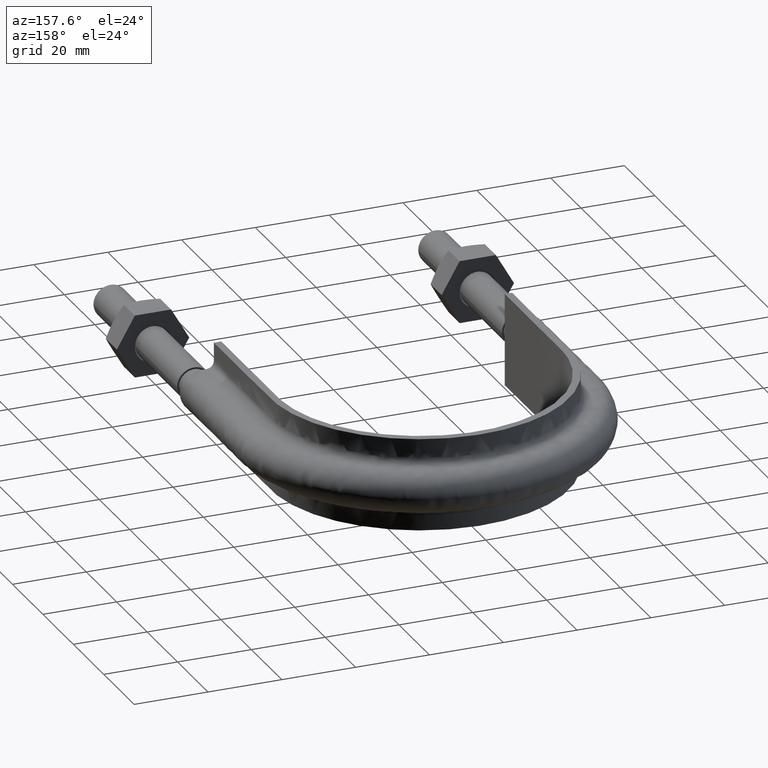
[diagram: clean part render]
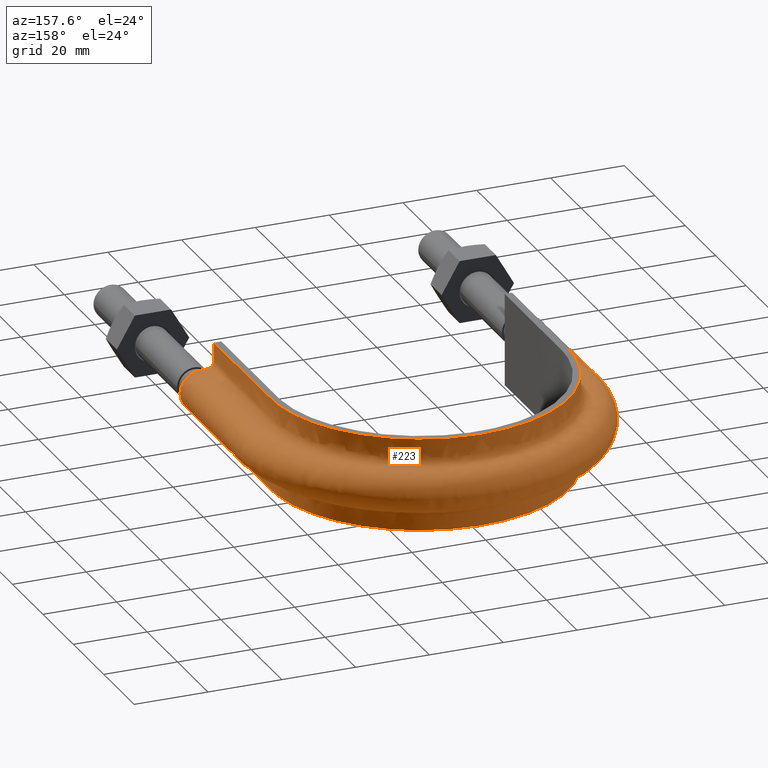
[diagram: same view with one face highlighted and labeled with its STEP entity id]
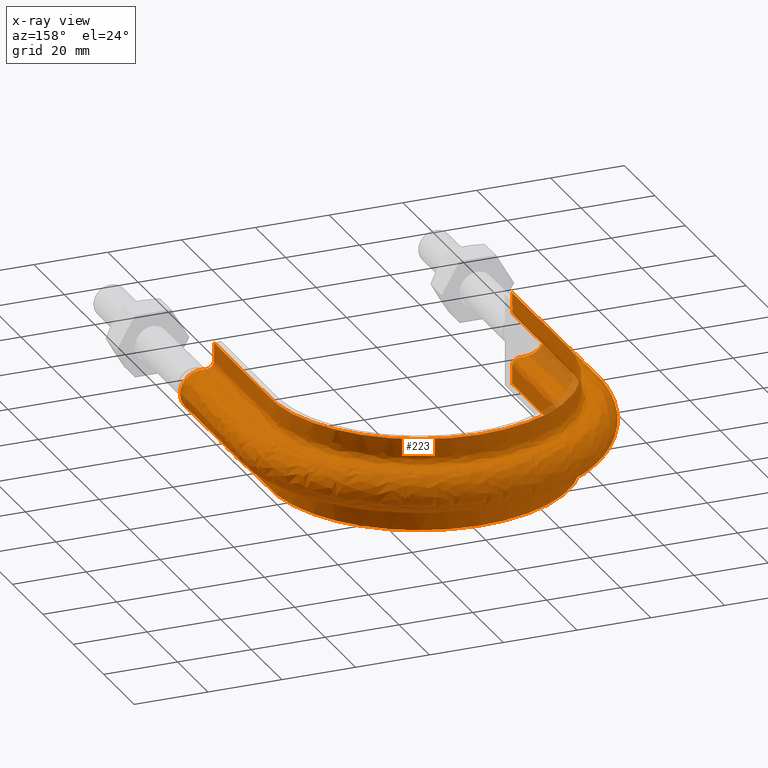
[diagram: x-ray of the same camera — body ghosted, the highlighted face saturated]
A machine part, auxiliary view. The second image highlights one B-rep face of the part: STEP entity #223.
The next image is the same camera in x-ray: the body ghosted, the highlighted face saturated — about 3% of this face is hidden behind the body in this view.
In plain terms, the highlighted face is a freeform B-spline surface patch.
Its self-contained STEP definition (entity closure, byte-faithful):
#223 = ADVANCED_FACE( '', ( #303 ), #304, .F. );
#303 = FACE_OUTER_BOUND( '', #471, .T. );
#304 = B_SPLINE_SURFACE_WITH_KNOTS( '', 3, 3, ( ( #472, #473, #474, #475, #476, #477, #478, #479, #480, #481, #482, #483, #484, #485, #486, #487, #488 ), ( #489, #490, #491, #492, #493, #494, #495, #496, #497, #498, #499, #500, #501, #502, #503, #504, #505 ), ( #506, #507, #508, #509, #510, #511, #512, #513, #514, #515, #516, #517, #518, #519, #520, #521, #522 ), ( #523, #524, #525, #526, #527, #528, #529, #530, #531, #532, #533, #534, #535, #536, #537, #538, #539 ), ( #540, #541, #542, #543, #544, #545, #546, #547, #548, #549, #550, #551, #552, #553, #554, #555, #556 ), ( #557, #558, #559, #560, #561, #562, #563, #564, #565, #566, #567, #568, #569, #570, #571, #572, #573 ), ( #574, #575, #576, #577, #578, #579, #580, #581, #582, #583, #584, #585, #586, #587, #588, #589, #590 ), ( #591, #592, #593, #594, #595, #596, #597, #598, #599, #600, #601, #602, #603, #604, #605, #606, #607 ), ( #608, #609, #610, #611, #612, #613, #614, #615, #616, #617, #618, #619, #620, #621, #622, #623, #624 ), ( #625, #626, #627, #628, #629, #630, #631, #632, #633, #634, #635, #636, #637, #638, #639, #640, #641 ), ( #642, #643, #644, #645, #646, #647, #648, #649, #650, #651, #652, #653, #654, #655, #656, #657, #658 ), ( #659, #660, #661, #662, #663, #664, #665, #666, #667, #668, #669, #670, #671, #672, #673, #674, #675 ), ( #676, #677, #678, #679, #680, #681, #682, #683, #684, #685, #686, #687, #688, #689, #690, #691, #692 ), ( #693, #694, #695, #696, #697, #698, #699, #700, #701, #702, #703, #704, #705, #706, #707, #708, #709 ), ( #710, #711, #712, #713, #714, #715, #716, #717, #718, #719, #720, #721, #722, #723, #724, #725, #726 ), ( #727, #728, #729, #730, #731, #732, #733, #734, #735, #736, #737, #738, #739, #740, #741, #742, #743 ), ( #744, #745, #746, #747, #748, #749, #750, #751, #752, #753, #754, #755, #756, #757, #758, #759, #760 ), ( #761, #762, #763, #764, #765, #766, #767, #768, #769, #770, #771, #772, #773, #774, #775, #776, #777 ), ( #778, #779, #780, #781, #782, #783, #784, #785, #786, #787, #788, #789, #790, #791, #792, #793, #794 ), ( #795, #796, #797, #798, #799, #800, #801, #802, #803, #804, #805, #806, #807, #808, #809, #810, #811 ), ( #812, #813, #814, #815, #816, #817, #818, #819, #820, #821, #822, #823, #824, #825, #826, #827, #828 ), ( #829, #830, #831, #832, #833, #834, #835, #836, #837, #838, #839, #840, #841, #842, #843, #844, #845 ), ( #846, #847, #848, #849, #850, #851, #852, #853, #854, #855, #856, #857, #858, #859, #860, #861, #862 ), ( #863, #864, #865, #866, #867, #868, #869, #870, #871, #872, #873, #874, #875, #876, #877, #878, #879 ), ( #880, #881, #882, #883, #884, #885, #886, #887, #888, #889, #890, #891, #892, #893, #894, #895, #896 ), ( #897, #898, #899, #900, #901, #902, #903, #904, #905, #906, #907, #908, #909, #910, #911, #912, #913 ), ( #914, #915, #916, #917, #918, #919, #920, #921, #922, #923, #924, #925, #926, #927, #928, #929, #930 ), ( #931, #932, #933, #934, #935, #936, #937, #938, #939, #940, #941, #942, #943, #944, #945, #946, #947 ), ( #948, #949, #950, #951, #952, #953, #954, #955, #956, #957, #958, #959, #960, #961, #962, #963, #964 ), ( #965, #966, #967, #968, #969, #970, #971, #972, #973, #974, #975, #976, #977, #978, #979, #980, #981 ), ( #982, #983, #984, #985, #986, #987, #988, #989, #990, #991, #992, #993, #994, #995, #996, #997, #998 ) ), .UNSPECIFIED., .F., .F., .F., ( 4, 3, 1, 1, 1, 3, 3, 1, 1, 1, 3, 3, 1, 1, 1, 3, 4 ), ( 4, 3, 1, 1, 1, 1, 1, 1, 1, 3, 4 ), ( 0.105263157894737, 0.157894736842105, 0.210526315789474, 0.263157894736842, 0.315789473684211, 0.368421052631579, 0.421052631578947, 0.473684210526316, 0.526315789473684, 0.578947368421053, 0.631578947368421, 0.684210526315789, 0.736842105263158, 0.789473684210526, 0.842105263157895, 0.894736842105263, 0.947368421052632 ), ( 0.000000000000000, 1.00000000000000, 1.50000000000000, 2.00000000000000, 3.00000000000000, 4.00000000000000, 5.00000000000000, 6.00000000000000, 6.50000000000000, 7.00000000000000, 8.00000000000000 ), .UNSPECIFIED. );
#471 = EDGE_LOOP( '', ( #1348, #1349, #1350, #1351 ) );
#472 = CARTESIAN_POINT( '', ( -40.4000000000000, 56.5000000000000, 12.5000000000000 ) );
#473 = CARTESIAN_POINT( '', ( -40.4000000000000, 69.8666666666667, 12.5000000000000 ) );
#474 = CARTESIAN_POINT( '', ( -40.4000000000000, 83.2333333333333, 12.5000000000000 ) );
#475 = CARTESIAN_POINT( '', ( -40.4000000000000, 96.6000000000000, 12.5000000000000 ) );
#476 = CARTESIAN_POINT( '', ( -40.4000000000000, 100.116528833197, 12.5000000000000 ) );
#477 = CARTESIAN_POINT( '', ( -39.4544182095027, 107.175179019489, 12.5000000000000 ) );
#478 = CARTESIAN_POINT( '', ( -34.0439198137652, 120.322280291266, 12.5000000000000 ) );
#479 = CARTESIAN_POINT( '', ( -21.1440253219688, 133.223582281160, 12.5000000000000 ) );
#480 = CARTESIAN_POINT( '', ( 3.17534878498284E-014, 138.888208859420, 12.5000000000000 ) );
#481 = CARTESIAN_POINT( '', ( 21.1440253219689, 133.223582281160, 12.5000000000000 ) );
#482 = CARTESIAN_POINT( '', ( 34.0439198137653, 120.322280291266, 12.5000000000000 ) );
#483 = CARTESIAN_POINT( '', ( 39.4544182095027, 107.175179019489, 12.5000000000000 ) );
#484 = CARTESIAN_POINT( '', ( 40.4000000000000, 100.116528833197, 12.5000000000000 ) );
#485 = CARTESIAN_POINT( '', ( 40.4000000000000, 96.6000000000000, 12.5000000000000 ) );
#486 = CARTESIAN_POINT( '', ( 40.4000000000000, 83.2333333333333, 12.5000000000000 ) );
#487 = CARTESIAN_POINT( '', ( 40.4000000000000, 69.8666666666667, 12.5000000000000 ) );
#488 = CARTESIAN_POINT( '', ( 40.4000000000000, 56.5000000000000, 12.5000000000000 ) );
#489 = CARTESIAN_POINT( '', ( -40.4000000000000, 56.5000000000000, 10.8666666666667 ) );
#490 = CARTESIAN_POINT( '', ( -40.4000000000000, 69.8666666666667, 10.8666666666667 ) );
#491 = CARTESIAN_POINT( '', ( -40.4000000000000, 83.2333333333333, 10.8666666666667 ) );
#492 = CARTESIAN_POINT( '', ( -40.4000000000000, 96.6000000000000, 10.8666666666667 ) );
#493 = CARTESIAN_POINT( '', ( -40.4000000000000, 100.116528833197, 10.8666666666667 ) );
#494 = CARTESIAN_POINT( '', ( -39.4544182095027, 107.175179019489, 10.8666666666666 ) );
#495 = CARTESIAN_POINT( '', ( -34.0439198137652, 120.322280291266, 10.8666666666667 ) );
#496 = CARTESIAN_POINT( '', ( -21.1440253219688, 133.223582281160, 10.8666666666667 ) );
#497 = CARTESIAN_POINT( '', ( 3.17534878498284E-014, 138.888208859420, 10.8666666666667 ) );
#498 = CARTESIAN_POINT( '', ( 21.1440253219689, 133.223582281160, 10.8666666666667 ) );
#499 = CARTESIAN_POINT( '', ( 34.0439198137653, 120.322280291266, 10.8666666666667 ) );
#500 = CARTESIAN_POINT( '', ( 39.4544182095027, 107.175179019489, 10.8666666666666 ) );
#501 = CARTESIAN_POINT( '', ( 40.4000000000000, 100.116528833197, 10.8666666666667 ) );
#502 = CARTESIAN_POINT( '', ( 40.4000000000000, 96.6000000000000, 10.8666666666667 ) );
#503 = CARTESIAN_POINT( '', ( 40.4000000000000, 83.2333333333333, 10.8666666666667 ) );
#504 = CARTESIAN_POINT( '', ( 40.4000000000000, 69.8666666666667, 10.8666666666667 ) );
#505 = CARTESIAN_POINT( '', ( 40.4000000000000, 56.5000000000000, 10.8666666666667 ) );
#506 = CARTESIAN_POINT( '', ( -40.4000000000000, 56.5000000000000, 9.23333333333332 ) );
#507 = CARTESIAN_POINT( '', ( -40.4000000000000, 69.8666666666667, 9.23333333333332 ) );
#508 = CARTESIAN_POINT( '', ( -40.4000000000000, 83.2333333333333, 9.23333333333332 ) );
#509 = CARTESIAN_POINT( '', ( -40.4000000000000, 96.6000000000000, 9.23333333333332 ) );
#510 = CARTESIAN_POINT( '', ( -40.4000000000000, 100.116528833197, 9.23333333333332 ) );
#511 = CARTESIAN_POINT( '', ( -39.4544182095027, 107.175179019489, 9.23333333333331 ) );
#512 = CARTESIAN_POINT( '', ( -34.0439198137652, 120.322280291266, 9.23333333333333 ) );
#513 = CARTESIAN_POINT( '', ( -21.1440253219688, 133.223582281160, 9.23333333333332 ) );
#514 = CARTESIAN_POINT( '', ( 3.17534878498284E-014, 138.888208859420, 9.23333333333332 ) );
#515 = CARTESIAN_POINT( '', ( 21.1440253219689, 133.223582281160, 9.23333333333332 ) );
#516 = CARTESIAN_POINT( '', ( 34.0439198137653, 120.322280291266, 9.23333333333332 ) );
#517 = CARTESIAN_POINT( '', ( 39.4544182095027, 107.175179019489, 9.23333333333331 ) );
#518 = CARTESIAN_POINT( '', ( 40.4000000000000, 100.116528833197, 9.23333333333332 ) );
#519 = CARTESIAN_POINT( '', ( 40.4000000000000, 96.6000000000000, 9.23333333333332 ) );
#520 = CARTESIAN_POINT( '', ( 40.4000000000000, 83.2333333333333, 9.23333333333332 ) );
#521 = CARTESIAN_POINT( '', ( 40.4000000000000, 69.8666666666667, 9.23333333333332 ) );
#522 = CARTESIAN_POINT( '', ( 40.4000000000000, 56.5000000000000, 9.23333333333332 ) );
#523 = CARTESIAN_POINT( '', ( -40.4000000000000, 56.5000000000000, 7.59999999999998 ) );
#524 = CARTESIAN_POINT( '', ( -40.4000000000000, 69.8666666666667, 7.59999999999998 ) );
#525 = CARTESIAN_POINT( '', ( -40.4000000000000, 83.2333333333333, 7.59999999999998 ) );
#526 = CARTESIAN_POINT( '', ( -40.4000000000000, 96.6000000000000, 7.59999999999998 ) );
#527 = CARTESIAN_POINT( '', ( -40.4000000000000, 100.116528833197, 7.59999999999998 ) );
#528 = CARTESIAN_POINT( '', ( -39.4544182095027, 107.175179019489, 7.59999999999997 ) );
#529 = CARTESIAN_POINT( '', ( -34.0439198137652, 120.322280291266, 7.59999999999999 ) );
#530 = CARTESIAN_POINT( '', ( -21.1440253219688, 133.223582281160, 7.59999999999998 ) );
#531 = CARTESIAN_POINT( '', ( 3.34882113258052E-014, 138.888208859420, 7.59999999999998 ) );
#532 = CARTESIAN_POINT( '', ( 21.1440253219689, 133.223582281160, 7.59999999999998 ) );
#533 = CARTESIAN_POINT( '', ( 34.0439198137653, 120.322280291266, 7.59999999999999 ) );
#534 = CARTESIAN_POINT( '', ( 39.4544182095027, 107.175179019489, 7.59999999999997 ) );
#535 = CARTESIAN_POINT( '', ( 40.4000000000000, 100.116528833197, 7.59999999999998 ) );
#536 = CARTESIAN_POINT( '', ( 40.4000000000000, 96.6000000000000, 7.59999999999998 ) );
#537 = CARTESIAN_POINT( '', ( 40.4000000000000, 83.2333333333333, 7.59999999999998 ) );
#538 = CARTESIAN_POINT( '', ( 40.4000000000000, 69.8666666666667, 7.59999999999998 ) );
#539 = CARTESIAN_POINT( '', ( 40.4000000000000, 56.5000000000000, 7.59999999999998 ) );
#540 = CARTESIAN_POINT( '', ( -40.4000000000000, 56.5000000000000, 7.33823584172332 ) );
#541 = CARTESIAN_POINT( '', ( -40.4000000000000, 69.8666666666667, 7.33823584172332 ) );
#542 = CARTESIAN_POINT( '', ( -40.4000000000000, 83.2333333333333, 7.33823584172332 ) );
#543 = CARTESIAN_POINT( '', ( -40.4000000000000, 96.6000000000000, 7.33823584172332 ) );
#544 = CARTESIAN_POINT( '', ( -40.4000000000000, 100.116528833197, 7.33823584172332 ) );
#545 = CARTESIAN_POINT( '', ( -39.4544182095027, 107.175179019489, 7.33823584172331 ) );
#546 = CARTESIAN_POINT( '', ( -34.0439198137652, 120.322280291266, 7.33823584172332 ) );
#547 = CARTESIAN_POINT( '', ( -21.1440253219688, 133.223582281160, 7.33823584172331 ) );
#548 = CARTESIAN_POINT( '', ( 3.17534878498284E-014, 138.888208859420, 7.33823584172331 ) );
#549 = CARTESIAN_POINT( '', ( 21.1440253219689, 133.223582281160, 7.33823584172331 ) );
#550 = CARTESIAN_POINT( '', ( 34.0439198137653, 120.322280291266, 7.33823584172332 ) );
#551 = CARTESIAN_POINT( '', ( 39.4544182095027, 107.175179019489, 7.33823584172331 ) );
#552 = CARTESIAN_POINT( '', ( 40.4000000000000, 100.116528833197, 7.33823584172332 ) );
#553 = CARTESIAN_POINT( '', ( 40.4000000000000, 96.6000000000000, 7.33823584172332 ) );
#554 = CARTESIAN_POINT( '', ( 40.4000000000000, 83.2333333333333, 7.33823584172332 ) );
#555 = CARTESIAN_POINT( '', ( 40.4000000000000, 69.8666666666667, 7.33823584172332 ) );
#556 = CARTESIAN_POINT( '', ( 40.4000000000000, 56.5000000000000, 7.33823584172332 ) );
#557 = CARTESIAN_POINT( '', ( -40.5041362568359, 56.5000000000000, 6.81470752516999 ) );
#558 = CARTESIAN_POINT( '', ( -40.5041362568359, 69.8666666666667, 6.81470752516999 ) );
#559 = CARTESIAN_POINT( '', ( -40.5041362568359, 83.2333333333333, 6.81470752516999 ) );
#560 = CARTESIAN_POINT( '', ( -40.5041362568359, 96.6000000000000, 6.81470752516999 ) );
#561 = CARTESIAN_POINT( '', ( -40.5041362568359, 100.125829908504, 6.81470752516999 ) );
#562 = CARTESIAN_POINT( '', ( -39.5561585978603, 107.202341937292, 6.81470752516998 ) );
#563 = CARTESIAN_POINT( '', ( -34.1316485577521, 120.383483124071, 6.81470752516999 ) );
#564 = CARTESIAN_POINT( '', ( -21.1985343424224, 133.317964123169, 6.81470752516999 ) );
#565 = CARTESIAN_POINT( '', ( 3.26341994459140E-014, 138.997222323669, 6.81470752516999 ) );
#566 = CARTESIAN_POINT( '', ( 21.1985343424224, 133.317964123169, 6.81470752516999 ) );
#567 = CARTESIAN_POINT( '', ( 34.1316485577522, 120.383483124071, 6.81470752516999 ) );
#568 = CARTESIAN_POINT( '', ( 39.5561585978604, 107.202341937292, 6.81470752516998 ) );
#569 = CARTESIAN_POINT( '', ( 40.5041362568359, 100.125829908504, 6.81470752516999 ) );
#570 = CARTESIAN_POINT( '', ( 40.5041362568359, 96.6000000000000, 6.81470752516999 ) );
#571 = CARTESIAN_POINT( '', ( 40.5041362568359, 83.2333333333333, 6.81470752516999 ) );
#572 = CARTESIAN_POINT( '', ( 40.5041362568359, 69.8666666666667, 6.81470752516999 ) );
#573 = CARTESIAN_POINT( '', ( 40.5041362568359, 56.5000000000000, 6.81470752516999 ) );
#574 = CARTESIAN_POINT( '', ( -40.9489687109389, 56.5000000000000, 6.14896871093886 ) );
#575 = CARTESIAN_POINT( '', ( -40.9489687109389, 69.8666666666667, 6.14896871093886 ) );
#576 = CARTESIAN_POINT( '', ( -40.9489687109389, 83.2333333333333, 6.14896871093886 ) );
#577 = CARTESIAN_POINT( '', ( -40.9489687109389, 96.6000000000000, 6.14896871093886 ) );
#578 = CARTESIAN_POINT( '', ( -40.9489687109389, 100.165560740786, 6.14896871093886 ) );
#579 = CARTESIAN_POINT( '', ( -39.9907567676970, 107.318372105405, 6.14896871093885 ) );
#580 = CARTESIAN_POINT( '', ( -34.5063940466797, 120.644919506957, 6.14896871093886 ) );
#581 = CARTESIAN_POINT( '', ( -21.4313771781055, 133.721129242402, 6.14896871093885 ) );
#582 = CARTESIAN_POINT( '', ( 3.18238634770451E-014, 139.462888445207, 6.14896871093886 ) );
#583 = CARTESIAN_POINT( '', ( 21.4313771781055, 133.721129242402, 6.14896871093885 ) );
#584 = CARTESIAN_POINT( '', ( 34.5063940466797, 120.644919506957, 6.14896871093886 ) );
#585 = CARTESIAN_POINT( '', ( 39.9907567676970, 107.318372105405, 6.14896871093885 ) );
#586 = CARTESIAN_POINT( '', ( 40.9489687109389, 100.165560740786, 6.14896871093886 ) );
#587 = CARTESIAN_POINT( '', ( 40.9489687109389, 96.6000000000000, 6.14896871093886 ) );
#588 = CARTESIAN_POINT( '', ( 40.9489687109389, 83.2333333333333, 6.14896871093886 ) );
#589 = CARTESIAN_POINT( '', ( 40.9489687109389, 69.8666666666667, 6.14896871093886 ) );
#590 = CARTESIAN_POINT( '', ( 40.9489687109389, 56.5000000000000, 6.14896871093886 ) );
#591 = CARTESIAN_POINT( '', ( -41.6147075251700, 56.5000000000000, 5.70413625683589 ) );
#592 = CARTESIAN_POINT( '', ( -41.6147075251700, 69.8666666666667, 5.70413625683589 ) );
#593 = CARTESIAN_POINT( '', ( -41.6147075251700, 83.2333333333333, 5.70413625683589 ) );
#594 = CARTESIAN_POINT( '', ( -41.6147075251700, 96.6000000000000, 5.70413625683589 ) );
#595 = CARTESIAN_POINT( '', ( -41.6147075251700, 100.225022133333, 5.70413625683589 ) );
#596 = CARTESIAN_POINT( '', ( -40.6411788931184, 107.492023523646, 5.70413625683588 ) );
#597 = CARTESIAN_POINT( '', ( -35.0672403049415, 121.036186704155, 5.70413625683589 ) );
#598 = CARTESIAN_POINT( '', ( -21.7798511077842, 134.324508483151, 5.70413625683588 ) );
#599 = CARTESIAN_POINT( '', ( 3.10418468337414E-014, 140.159807046179, 5.70413625683589 ) );
#600 = CARTESIAN_POINT( '', ( 21.7798511077843, 134.324508483151, 5.70413625683588 ) );
#601 = CARTESIAN_POINT( '', ( 35.0672403049415, 121.036186704155, 5.70413625683589 ) );
#602 = CARTESIAN_POINT( '', ( 40.6411788931185, 107.492023523646, 5.70413625683588 ) );
#603 = CARTESIAN_POINT( '', ( 41.6147075251700, 100.225022133333, 5.70413625683589 ) );
#604 = CARTESIAN_POINT( '', ( 41.6147075251700, 96.6000000000000, 5.70413625683589 ) );
#605 = CARTESIAN_POINT( '', ( 41.6147075251700, 83.2333333333333, 5.70413625683589 ) );
#606 = CARTESIAN_POINT( '', ( 41.6147075251700, 69.8666666666667, 5.70413625683589 ) );
#607 = CARTESIAN_POINT( '', ( 41.6147075251700, 56.5000000000000, 5.70413625683589 ) );
#608 = CARTESIAN_POINT( '', ( -42.1382358417233, 56.5000000000000, 5.59999999999998 ) );
#609 = CARTESIAN_POINT( '', ( -42.1382358417233, 69.8666666666667, 5.59999999999998 ) );
#610 = CARTESIAN_POINT( '', ( -42.1382358417233, 83.2333333333333, 5.59999999999998 ) );
#611 = CARTESIAN_POINT( '', ( -42.1382358417233, 96.6000000000000, 5.59999999999998 ) );
#612 = CARTESIAN_POINT( '', ( -42.1382358417233, 100.271781796545, 5.59999999999998 ) );
#613 = CARTESIAN_POINT( '', ( -41.1526623654531, 107.628580733042, 5.59999999999997 ) );
#614 = CARTESIAN_POINT( '', ( -35.5082824841813, 121.343874122543, 5.59999999999998 ) );
#615 = CARTESIAN_POINT( '', ( -22.0538864589874, 134.798998044823, 5.59999999999998 ) );
#616 = CARTESIAN_POINT( '', ( 3.11089611025677E-014, 140.707854740173, 5.59999999999998 ) );
#617 = CARTESIAN_POINT( '', ( 22.0538864589875, 134.798998044823, 5.59999999999997 ) );
#618 = CARTESIAN_POINT( '', ( 35.5082824841814, 121.343874122543, 5.59999999999998 ) );
#619 = CARTESIAN_POINT( '', ( 41.1526623654532, 107.628580733042, 5.59999999999997 ) );
#620 = CARTESIAN_POINT( '', ( 42.1382358417234, 100.271781796545, 5.59999999999998 ) );
#621 = CARTESIAN_POINT( '', ( 42.1382358417234, 96.6000000000000, 5.59999999999998 ) );
#622 = CARTESIAN_POINT( '', ( 42.1382358417233, 83.2333333333333, 5.59999999999998 ) );
#623 = CARTESIAN_POINT( '', ( 42.1382358417233, 69.8666666666667, 5.59999999999998 ) );
#624 = CARTESIAN_POINT( '', ( 42.1382358417233, 56.5000000000000, 5.59999999999998 ) );
#625 = CARTESIAN_POINT( '', ( -42.4000000000000, 56.5000000000000, 5.59999999999998 ) );
#626 = CARTESIAN_POINT( '', ( -42.4000000000000, 69.8666666666667, 5.59999999999998 ) );
#627 = CARTESIAN_POINT( '', ( -42.4000000000000, 83.2333333333333, 5.59999999999998 ) );
#628 = CARTESIAN_POINT( '', ( -42.4000000000000, 96.6000000000000, 5.59999999999998 ) );
#629 = CARTESIAN_POINT( '', ( -42.4000000000000, 100.295161628151, 5.59999999999998 ) );
#630 = CARTESIAN_POINT( '', ( -41.4084041016205, 107.696859337741, 5.59999999999997 ) );
#631 = CARTESIAN_POINT( '', ( -35.7288035738012, 121.497717831737, 5.59999999999998 ) );
#632 = CARTESIAN_POINT( '', ( -22.1909041345891, 135.036242825660, 5.59999999999998 ) );
#633 = CARTESIAN_POINT( '', ( 3.11425182369808E-014, 140.981878587170, 5.59999999999998 ) );
#634 = CARTESIAN_POINT( '', ( 22.1909041345891, 135.036242825659, 5.59999999999997 ) );
#635 = CARTESIAN_POINT( '', ( 35.7288035738013, 121.497717831737, 5.59999999999998 ) );
#636 = CARTESIAN_POINT( '', ( 41.4084041016205, 107.696859337741, 5.59999999999997 ) );
#637 = CARTESIAN_POINT( '', ( 42.4000000000000, 100.295161628151, 5.59999999999998 ) );
#638 = CARTESIAN_POINT( '', ( 42.4000000000000, 96.6000000000000, 5.59999999999998 ) );
#639 = CARTESIAN_POINT( '', ( 42.4000000000000, 83.2333333333333, 5.59999999999998 ) );
#640 = CARTESIAN_POINT( '', ( 42.4000000000000, 69.8666666666667, 5.59999999999998 ) );
#641 = CARTESIAN_POINT( '', ( 42.4000000000000, 56.5000000000000, 5.59999999999998 ) );
#642 = CARTESIAN_POINT( '', ( -42.9333333333333, 56.5000000000000, 5.60000000000000 ) );
#643 = CARTESIAN_POINT( '', ( -42.9333333333333, 69.8666666666667, 5.60000000000000 ) );
#644 = CARTESIAN_POINT( '', ( -42.9333333333333, 83.2333333333333, 5.60000000000000 ) );
#645 = CARTESIAN_POINT( '', ( -42.9333333333333, 96.6000000000000, 5.60000000000000 ) );
#646 = CARTESIAN_POINT( '', ( -42.9333333333333, 100.342797040139, 5.60000000000000 ) );
#647 = CARTESIAN_POINT( '', ( -41.9294670061852, 107.835974089275, 5.59999999999999 ) );
#648 = CARTESIAN_POINT( '', ( -36.1781059098108, 121.811167842530, 5.60000000000001 ) );
#649 = CARTESIAN_POINT( '', ( -22.4700718179544, 135.519618970859, 5.60000000000000 ) );
#650 = CARTESIAN_POINT( '', ( 3.29456129463285E-014, 141.540190514570, 5.60000000000000 ) );
#651 = CARTESIAN_POINT( '', ( 22.4700718179545, 135.519618970859, 5.60000000000000 ) );
#652 = CARTESIAN_POINT( '', ( 36.1781059098109, 121.811167842530, 5.60000000000000 ) );
#653 = CARTESIAN_POINT( '', ( 41.9294670061853, 107.835974089275, 5.60000000000000 ) );
#654 = CARTESIAN_POINT( '', ( 42.9333333333334, 100.342797040139, 5.60000000000000 ) );
#655 = CARTESIAN_POINT( '', ( 42.9333333333334, 96.6000000000000, 5.60000000000000 ) );
#656 = CARTESIAN_POINT( '', ( 42.9333333333333, 83.2333333333333, 5.60000000000000 ) );
#657 = CARTESIAN_POINT( '', ( 42.9333333333333, 69.8666666666667, 5.60000000000000 ) );
#658 = CARTESIAN_POINT( '', ( 42.9333333333333, 56.5000000000000, 5.60000000000000 ) );
#659 = CARTESIAN_POINT( '', ( -43.4666666666666, 56.5000000000000, 5.60000000000000 ) );
#660 = CARTESIAN_POINT( '', ( -43.4666666666666, 69.8666666666667, 5.60000000000000 ) );
#661 = CARTESIAN_POINT( '', ( -43.4666666666666, 83.2333333333333, 5.60000000000000 ) );
#662 = CARTESIAN_POINT( '', ( -43.4666666666666, 96.6000000000000, 5.60000000000000 ) );
#663 = CARTESIAN_POINT( '', ( -43.4666666666666, 100.390432452126, 5.60000000000000 ) );
#664 = CARTESIAN_POINT( '', ( -42.4505299107500, 107.975088840809, 5.59999999999999 ) );
#665 = CARTESIAN_POINT( '', ( -36.6274082458204, 122.124617853322, 5.60000000000001 ) );
#666 = CARTESIAN_POINT( '', ( -22.7492395013198, 136.002995116059, 5.60000000000000 ) );
#667 = CARTESIAN_POINT( '', ( 2.95445372277458E-014, 142.098502441970, 5.60000000000000 ) );
#668 = CARTESIAN_POINT( '', ( 22.7492395013199, 136.002995116059, 5.60000000000000 ) );
#669 = CARTESIAN_POINT( '', ( 36.6274082458205, 122.124617853322, 5.60000000000000 ) );
#670 = CARTESIAN_POINT( '', ( 42.4505299107500, 107.975088840809, 5.60000000000000 ) );
#671 = CARTESIAN_POINT( '', ( 43.4666666666667, 100.390432452126, 5.60000000000000 ) );
#672 = CARTESIAN_POINT( '', ( 43.4666666666667, 96.6000000000000, 5.60000000000000 ) );
#673 = CARTESIAN_POINT( '', ( 43.4666666666667, 83.2333333333333, 5.60000000000000 ) );
#674 = CARTESIAN_POINT( '', ( 43.4666666666667, 69.8666666666667, 5.60000000000000 ) );
#675 = CARTESIAN_POINT( '', ( 43.4666666666667, 56.5000000000000, 5.60000000000000 ) );
#676 = CARTESIAN_POINT( '', ( -44.0000000000000, 56.5000000000000, 5.60000000000000 ) );
#677 = CARTESIAN_POINT( '', ( -44.0000000000000, 69.8666666666667, 5.60000000000000 ) );
#678 = CARTESIAN_POINT( '', ( -44.0000000000000, 83.2333333333333, 5.60000000000000 ) );
#679 = CARTESIAN_POINT( '', ( -44.0000000000000, 96.6000000000000, 5.60000000000000 ) );
#680 = CARTESIAN_POINT( '', ( -44.0000000000000, 100.438067864114, 5.60000000000000 ) );
#681 = CARTESIAN_POINT( '', ( -42.9715928153147, 108.114203592343, 5.59999999999999 ) );
#682 = CARTESIAN_POINT( '', ( -37.0767105818300, 122.438067864114, 5.60000000000001 ) );
#683 = CARTESIAN_POINT( '', ( -23.0284071846852, 136.486371261259, 5.60000000000000 ) );
#684 = CARTESIAN_POINT( '', ( 3.13476319370935E-014, 142.656814369370, 5.60000000000000 ) );
#685 = CARTESIAN_POINT( '', ( 23.0284071846853, 136.486371261259, 5.60000000000000 ) );
#686 = CARTESIAN_POINT( '', ( 37.0767105818301, 122.438067864114, 5.60000000000000 ) );
#687 = CARTESIAN_POINT( '', ( 42.9715928153148, 108.114203592343, 5.60000000000000 ) );
#688 = CARTESIAN_POINT( '', ( 44.0000000000000, 100.438067864114, 5.60000000000000 ) );
#689 = CARTESIAN_POINT( '', ( 44.0000000000000, 96.6000000000000, 5.60000000000000 ) );
#690 = CARTESIAN_POINT( '', ( 44.0000000000000, 83.2333333333333, 5.60000000000000 ) );
#691 = CARTESIAN_POINT( '', ( 44.0000000000000, 69.8666666666667, 5.60000000000000 ) );
#692 = CARTESIAN_POINT( '', ( 44.0000000000000, 56.5000000000000, 5.60000000000000 ) );
#693 = CARTESIAN_POINT( '', ( -45.4627416997969, 56.5000000000000, 5.60000000000000 ) );
#694 = CARTESIAN_POINT( '', ( -45.4627416997969, 69.8666666666667, 5.60000000000000 ) );
#695 = CARTESIAN_POINT( '', ( -45.4627416997969, 83.2333333333333, 5.60000000000000 ) );
#696 = CARTESIAN_POINT( '', ( -45.4627416997969, 96.6000000000000, 5.60000000000000 ) );
#697 = CARTESIAN_POINT( '', ( -45.4627416997969, 100.568714683179, 5.60000000000000 ) );
#698 = CARTESIAN_POINT( '', ( -44.4006811379226, 108.495745370078, 5.60000000000000 ) );
#699 = CARTESIAN_POINT( '', ( -38.3089854493877, 123.297748617091, 5.60000000000001 ) );
#700 = CARTESIAN_POINT( '', ( -23.7940638316120, 137.812098344267, 5.60000000000000 ) );
#701 = CARTESIAN_POINT( '', ( 2.98004261875882E-014, 144.188063377562, 5.60000000000000 ) );
#702 = CARTESIAN_POINT( '', ( 23.7940638316120, 137.812098344267, 5.60000000000000 ) );
#703 = CARTESIAN_POINT( '', ( 38.3089854493877, 123.297748617091, 5.60000000000001 ) );
#704 = CARTESIAN_POINT( '', ( 44.4006811379226, 108.495745370078, 5.60000000000000 ) );
#705 = CARTESIAN_POINT( '', ( 45.4627416997970, 100.568714683179, 5.60000000000000 ) );
#706 = CARTESIAN_POINT( '', ( 45.4627416997970, 96.6000000000000, 5.60000000000000 ) );
#707 = CARTESIAN_POINT( '', ( 45.4627416997970, 83.2333333333333, 5.60000000000000 ) );
#708 = CARTESIAN_POINT( '', ( 45.4627416997970, 69.8666666666667, 5.60000000000000 ) );
#709 = CARTESIAN_POINT( '', ( 45.4627416997970, 56.5000000000000, 5.60000000000000 ) );
#710 = CARTESIAN_POINT( '', ( -48.3882250993908, 56.5000000000000, 4.38822509939086 ) );
#711 = CARTESIAN_POINT( '', ( -48.3882250993908, 69.8666666666667, 4.38822509939086 ) );
#712 = CARTESIAN_POINT( '', ( -48.3882250993908, 83.2333333333333, 4.38822509939086 ) );
#713 = CARTESIAN_POINT( '', ( -48.3882250993908, 96.6000000000000, 4.38822509939086 ) );
#714 = CARTESIAN_POINT( '', ( -48.3882250993908, 100.830008321310, 4.38822509939086 ) );
#715 = CARTESIAN_POINT( '', ( -47.2588577831383, 109.258828925549, 4.38822509939085 ) );
#716 = CARTESIAN_POINT( '', ( -40.7735351845030, 125.017110123045, 4.38822509939086 ) );
#717 = CARTESIAN_POINT( '', ( -25.3253771254655, 140.463552510283, 4.38822509939086 ) );
#718 = CARTESIAN_POINT( '', ( 2.93080999025429E-014, 147.250561393945, 4.38822509939086 ) );
#719 = CARTESIAN_POINT( '', ( 25.3253771254655, 140.463552510283, 4.38822509939086 ) );
#720 = CARTESIAN_POINT( '', ( 40.7735351845030, 125.017110123045, 4.38822509939086 ) );
#721 = CARTESIAN_POINT( '', ( 47.2588577831383, 109.258828925549, 4.38822509939086 ) );
#722 = CARTESIAN_POINT( '', ( 48.3882250993909, 100.830008321310, 4.38822509939086 ) );
#723 = CARTESIAN_POINT( '', ( 48.3882250993909, 96.6000000000000, 4.38822509939086 ) );
#724 = CARTESIAN_POINT( '', ( 48.3882250993909, 83.2333333333333, 4.38822509939086 ) );
#725 = CARTESIAN_POINT( '', ( 48.3882250993909, 69.8666666666667, 4.38822509939086 ) );
#726 = CARTESIAN_POINT( '', ( 48.3882250993909, 56.5000000000000, 4.38822509939086 ) );
#727 = CARTESIAN_POINT( '', ( -50.2058874503046, 56.5000000000000, 2.90303803946411E-015 ) );
#728 = CARTESIAN_POINT( '', ( -50.2058874503046, 69.8666666666667, 2.90303803946411E-015 ) );
#729 = CARTESIAN_POINT( '', ( -50.2058874503046, 83.2333333333333, 2.90303803946411E-015 ) );
#730 = CARTESIAN_POINT( '', ( -50.2058874503046, 96.6000000000000, 2.90303803946411E-015 ) );
#731 = CARTESIAN_POINT( '', ( -50.2058874503046, 100.992355374323, 2.90303803946411E-015 ) );
#732 = CARTESIAN_POINT( '', ( -49.0347010782978, 109.732948262399, 2.90303803946411E-015 ) );
#733 = CARTESIAN_POINT( '', ( -42.3048100726446, 126.085384404627, 2.90303803946412E-015 ) );
#734 = CARTESIAN_POINT( '', ( -26.2768132273000, 142.110954923645, 2.90303803946411E-015 ) );
#735 = CARTESIAN_POINT( '', ( 3.47452874869430E-014, 149.153353713635, 2.90303803946411E-015 ) );
#736 = CARTESIAN_POINT( '', ( 26.2768132273000, 142.110954923645, 2.90303803946411E-015 ) );
#737 = CARTESIAN_POINT( '', ( 42.3048100726447, 126.085384404627, 2.90303803946411E-015 ) );
#738 = CARTESIAN_POINT( '', ( 49.0347010782979, 109.732948262399, 2.90303803946411E-015 ) );
#739 = CARTESIAN_POINT( '', ( 50.2058874503046, 100.992355374323, 2.90303803946411E-015 ) );
#740 = CARTESIAN_POINT( '', ( 50.2058874503046, 96.6000000000000, 2.90303803946411E-015 ) );
#741 = CARTESIAN_POINT( '', ( 50.2058874503046, 83.2333333333333, 2.90303803946411E-015 ) );
#742 = CARTESIAN_POINT( '', ( 50.2058874503046, 69.8666666666667, 2.90303803946411E-015 ) );
#743 = CARTESIAN_POINT( '', ( 50.2058874503046, 56.5000000000000, 2.90303803946411E-015 ) );
#744 = CARTESIAN_POINT( '', ( -48.3882250993908, 56.5000000000000, -4.38822509939085 ) );
#745 = CARTESIAN_POINT( '', ( -48.3882250993908, 69.8666666666667, -4.38822509939085 ) );
#746 = CARTESIAN_POINT( '', ( -48.3882250993908, 83.2333333333333, -4.38822509939085 ) );
#747 = CARTESIAN_POINT( '', ( -48.3882250993908, 96.6000000000000, -4.38822509939085 ) );
#748 = CARTESIAN_POINT( '', ( -48.3882250993908, 100.830008321310, -4.38822509939085 ) );
#749 = CARTESIAN_POINT( '', ( -47.2588577831383, 109.258828925549, -4.38822509939085 ) );
#750 = CARTESIAN_POINT( '', ( -40.7735351845030, 125.017110123045, -4.38822509939086 ) );
#751 = CARTESIAN_POINT( '', ( -25.3253771254655, 140.463552510283, -4.38822509939085 ) );
#752 = CARTESIAN_POINT( '', ( 2.93080999025429E-014, 147.250561393945, -4.38822509939085 ) );
#753 = CARTESIAN_POINT( '', ( 25.3253771254655, 140.463552510283, -4.38822509939085 ) );
#754 = CARTESIAN_POINT( '', ( 40.7735351845031, 125.017110123045, -4.38822509939086 ) );
#755 = CARTESIAN_POINT( '', ( 47.2588577831383, 109.258828925549, -4.38822509939085 ) );
#756 = CARTESIAN_POINT( '', ( 48.3882250993909, 100.830008321310, -4.38822509939085 ) );
#757 = CARTESIAN_POINT( '', ( 48.3882250993909, 96.6000000000000, -4.38822509939085 ) );
#758 = CARTESIAN_POINT( '', ( 48.3882250993909, 83.2333333333333, -4.38822509939085 ) );
#759 = CARTESIAN_POINT( '', ( 48.3882250993909, 69.8666666666667, -4.38822509939085 ) );
#760 = CARTESIAN_POINT( '', ( 48.3882250993909, 56.5000000000000, -4.38822509939085 ) );
#761 = CARTESIAN_POINT( '', ( -45.4627416997969, 56.5000000000000, -5.60000000000000 ) );
#762 = CARTESIAN_POINT( '', ( -45.4627416997969, 69.8666666666667, -5.60000000000000 ) );
#763 = CARTESIAN_POINT( '', ( -45.4627416997969, 83.2333333333333, -5.60000000000000 ) );
#764 = CARTESIAN_POINT( '', ( -45.4627416997969, 96.6000000000000, -5.60000000000000 ) );
#765 = CARTESIAN_POINT( '', ( -45.4627416997969, 100.568714683179, -5.60000000000000 ) );
#766 = CARTESIAN_POINT( '', ( -44.4006811379226, 108.495745370078, -5.59999999999999 ) );
#767 = CARTESIAN_POINT( '', ( -38.3089854493877, 123.297748617091, -5.60000000000000 ) );
#768 = CARTESIAN_POINT( '', ( -23.7940638316120, 137.812098344267, -5.60000000000000 ) );
#769 = CARTESIAN_POINT( '', ( 2.98004261875882E-014, 144.188063377562, -5.60000000000000 ) );
#770 = CARTESIAN_POINT( '', ( 23.7940638316120, 137.812098344267, -5.60000000000000 ) );
#771 = CARTESIAN_POINT( '', ( 38.3089854493877, 123.297748617091, -5.60000000000000 ) );
#772 = CARTESIAN_POINT( '', ( 44.4006811379226, 108.495745370078, -5.59999999999999 ) );
#773 = CARTESIAN_POINT( '', ( 45.4627416997970, 100.568714683179, -5.60000000000000 ) );
#774 = CARTESIAN_POINT( '', ( 45.4627416997970, 96.6000000000000, -5.60000000000000 ) );
#775 = CARTESIAN_POINT( '', ( 45.4627416997970, 83.2333333333333, -5.60000000000000 ) );
#776 = CARTESIAN_POINT( '', ( 45.4627416997970, 69.8666666666667, -5.60000000000000 ) );
#777 = CARTESIAN_POINT( '', ( 45.4627416997970, 56.5000000000000, -5.60000000000000 ) );
#778 = CARTESIAN_POINT( '', ( -44.0000000000000, 56.5000000000000, -5.60000000000000 ) );
#779 = CARTESIAN_POINT( '', ( -44.0000000000000, 69.8666666666667, -5.60000000000000 ) );
#780 = CARTESIAN_POINT( '', ( -44.0000000000000, 83.2333333333333, -5.60000000000000 ) );
#781 = CARTESIAN_POINT( '', ( -44.0000000000000, 96.6000000000000, -5.60000000000000 ) );
#782 = CARTESIAN_POINT( '', ( -44.0000000000000, 100.438067864114, -5.60000000000000 ) );
#783 = CARTESIAN_POINT( '', ( -42.9715928153147, 108.114203592343, -5.59999999999999 ) );
#784 = CARTESIAN_POINT( '', ( -37.0767105818300, 122.438067864114, -5.60000000000000 ) );
#785 = CARTESIAN_POINT( '', ( -23.0284071846852, 136.486371261259, -5.60000000000000 ) );
#786 = CARTESIAN_POINT( '', ( 2.96129084611167E-014, 142.656814369370, -5.60000000000000 ) );
#787 = CARTESIAN_POINT( '', ( 23.0284071846853, 136.486371261259, -5.60000000000000 ) );
#788 = CARTESIAN_POINT( '', ( 37.0767105818301, 122.438067864114, -5.60000000000000 ) );
#789 = CARTESIAN_POINT( '', ( 42.9715928153148, 108.114203592343, -5.59999999999999 ) );
#790 = CARTESIAN_POINT( '', ( 44.0000000000000, 100.438067864114, -5.60000000000000 ) );
#791 = CARTESIAN_POINT( '', ( 44.0000000000000, 96.6000000000000, -5.60000000000000 ) );
#792 = CARTESIAN_POINT( '', ( 44.0000000000000, 83.2333333333333, -5.60000000000000 ) );
#793 = CARTESIAN_POINT( '', ( 44.0000000000000, 69.8666666666667, -5.60000000000000 ) );
#794 = CARTESIAN_POINT( '', ( 44.0000000000000, 56.5000000000000, -5.60000000000000 ) );
#795 = CARTESIAN_POINT( '', ( -43.4666666666666, 56.5000000000000, -5.60000000000000 ) );
#796 = CARTESIAN_POINT( '', ( -43.4666666666666, 69.8666666666667, -5.60000000000000 ) );
#797 = CARTESIAN_POINT( '', ( -43.4666666666666, 83.2333333333333, -5.60000000000000 ) );
#798 = CARTESIAN_POINT( '', ( -43.4666666666666, 96.6000000000000, -5.60000000000000 ) );
#799 = CARTESIAN_POINT( '', ( -43.4666666666666, 100.390432452126, -5.60000000000000 ) );
#800 = CARTESIAN_POINT( '', ( -42.4505299107500, 107.975088840809, -5.59999999999999 ) );
#801 = CARTESIAN_POINT( '', ( -36.6274082458204, 122.124617853322, -5.60000000000000 ) );
#802 = CARTESIAN_POINT( '', ( -22.7492395013198, 136.002995116059, -5.60000000000000 ) );
#803 = CARTESIAN_POINT( '', ( 2.95445372277458E-014, 142.098502441970, -5.60000000000000 ) );
#804 = CARTESIAN_POINT( '', ( 22.7492395013199, 136.002995116059, -5.60000000000000 ) );
#805 = CARTESIAN_POINT( '', ( 36.6274082458205, 122.124617853322, -5.60000000000000 ) );
#806 = CARTESIAN_POINT( '', ( 42.4505299107500, 107.975088840809, -5.59999999999999 ) );
#807 = CARTESIAN_POINT( '', ( 43.4666666666667, 100.390432452126, -5.60000000000000 ) );
#808 = CARTESIAN_POINT( '', ( 43.4666666666667, 96.6000000000000, -5.60000000000000 ) );
#809 = CARTESIAN_POINT( '', ( 43.4666666666667, 83.2333333333333, -5.60000000000000 ) );
#810 = CARTESIAN_POINT( '', ( 43.4666666666667, 69.8666666666667, -5.60000000000000 ) );
#811 = CARTESIAN_POINT( '', ( 43.4666666666667, 56.5000000000000, -5.60000000000000 ) );
#812 = CARTESIAN_POINT( '', ( -42.9333333333333, 56.5000000000000, -5.60000000000000 ) );
#813 = CARTESIAN_POINT( '', ( -42.9333333333333, 69.8666666666667, -5.60000000000000 ) );
#814 = CARTESIAN_POINT( '', ( -42.9333333333333, 83.2333333333333, -5.60000000000000 ) );
#815 = CARTESIAN_POINT( '', ( -42.9333333333333, 96.6000000000000, -5.60000000000000 ) );
#816 = CARTESIAN_POINT( '', ( -42.9333333333333, 100.342797040139, -5.60000000000000 ) );
#817 = CARTESIAN_POINT( '', ( -41.9294670061852, 107.835974089275, -5.59999999999999 ) );
#818 = CARTESIAN_POINT( '', ( -36.1781059098108, 121.811167842530, -5.60000000000000 ) );
#819 = CARTESIAN_POINT( '', ( -22.4700718179544, 135.519618970859, -5.60000000000000 ) );
#820 = CARTESIAN_POINT( '', ( 3.29456129463285E-014, 141.540190514570, -5.60000000000000 ) );
#821 = CARTESIAN_POINT( '', ( 22.4700718179545, 135.519618970859, -5.60000000000000 ) );
#822 = CARTESIAN_POINT( '', ( 36.1781059098109, 121.811167842530, -5.60000000000000 ) );
#823 = CARTESIAN_POINT( '', ( 41.9294670061853, 107.835974089275, -5.59999999999999 ) );
#824 = CARTESIAN_POINT( '', ( 42.9333333333334, 100.342797040139, -5.60000000000000 ) );
#825 = CARTESIAN_POINT( '', ( 42.9333333333334, 96.6000000000000, -5.60000000000000 ) );
#826 = CARTESIAN_POINT( '', ( 42.9333333333333, 83.2333333333333, -5.60000000000000 ) );
#827 = CARTESIAN_POINT( '', ( 42.9333333333333, 69.8666666666667, -5.60000000000000 ) );
#828 = CARTESIAN_POINT( '', ( 42.9333333333333, 56.5000000000000, -5.60000000000000 ) );
#829 = CARTESIAN_POINT( '', ( -42.4000000000000, 56.5000000000000, -5.60000000000000 ) );
#830 = CARTESIAN_POINT( '', ( -42.4000000000000, 69.8666666666667, -5.60000000000000 ) );
#831 = CARTESIAN_POINT( '', ( -42.4000000000000, 83.2333333333333, -5.60000000000000 ) );
#832 = CARTESIAN_POINT( '', ( -42.4000000000000, 96.6000000000000, -5.60000000000000 ) );
#833 = CARTESIAN_POINT( '', ( -42.4000000000000, 100.295161628151, -5.60000000000000 ) );
#834 = CARTESIAN_POINT( '', ( -41.4084041016205, 107.696859337741, -5.59999999999999 ) );
#835 = CARTESIAN_POINT( '', ( -35.7288035738012, 121.497717831737, -5.60000000000000 ) );
#836 = CARTESIAN_POINT( '', ( -22.1909041345890, 135.036242825660, -5.60000000000000 ) );
#837 = CARTESIAN_POINT( '', ( 3.11425182369808E-014, 140.981878587170, -5.60000000000000 ) );
#838 = CARTESIAN_POINT( '', ( 22.1909041345891, 135.036242825659, -5.60000000000000 ) );
#839 = CARTESIAN_POINT( '', ( 35.7288035738013, 121.497717831737, -5.60000000000000 ) );
#840 = CARTESIAN_POINT( '', ( 41.4084041016205, 107.696859337741, -5.59999999999999 ) );
#841 = CARTESIAN_POINT( '', ( 42.4000000000000, 100.295161628151, -5.60000000000000 ) );
#842 = CARTESIAN_POINT( '', ( 42.4000000000000, 96.6000000000000, -5.60000000000000 ) );
#843 = CARTESIAN_POINT( '', ( 42.4000000000000, 83.2333333333333, -5.60000000000000 ) );
#844 = CARTESIAN_POINT( '', ( 42.4000000000000, 69.8666666666667, -5.60000000000000 ) );
#845 = CARTESIAN_POINT( '', ( 42.4000000000000, 56.5000000000000, -5.60000000000000 ) );
#846 = CARTESIAN_POINT( '', ( -42.1382358417233, 56.5000000000000, -5.60000000000000 ) );
#847 = CARTESIAN_POINT( '', ( -42.1382358417233, 69.8666666666667, -5.60000000000000 ) );
#848 = CARTESIAN_POINT( '', ( -42.1382358417233, 83.2333333333333, -5.60000000000000 ) );
#849 = CARTESIAN_POINT( '', ( -42.1382358417233, 96.6000000000000, -5.60000000000000 ) );
#850 = CARTESIAN_POINT( '', ( -42.1382358417233, 100.271781796545, -5.60000000000000 ) );
#851 = CARTESIAN_POINT( '', ( -41.1526623654531, 107.628580733042, -5.59999999999999 ) );
#852 = CARTESIAN_POINT( '', ( -35.5082824841813, 121.343874122543, -5.60000000000000 ) );
#853 = CARTESIAN_POINT( '', ( -22.0538864589874, 134.798998044823, -5.60000000000000 ) );
#854 = CARTESIAN_POINT( '', ( 3.11089611025677E-014, 140.707854740173, -5.60000000000000 ) );
#855 = CARTESIAN_POINT( '', ( 22.0538864589875, 134.798998044823, -5.60000000000000 ) );
#856 = CARTESIAN_POINT( '', ( 35.5082824841814, 121.343874122543, -5.60000000000000 ) );
#857 = CARTESIAN_POINT( '', ( 41.1526623654532, 107.628580733042, -5.59999999999999 ) );
#858 = CARTESIAN_POINT( '', ( 42.1382358417234, 100.271781796545, -5.60000000000000 ) );
#859 = CARTESIAN_POINT( '', ( 42.1382358417234, 96.6000000000000, -5.60000000000000 ) );
#860 = CARTESIAN_POINT( '', ( 42.1382358417233, 83.2333333333333, -5.60000000000000 ) );
#861 = CARTESIAN_POINT( '', ( 42.1382358417233, 69.8666666666667, -5.60000000000000 ) );
#862 = CARTESIAN_POINT( '', ( 42.1382358417233, 56.5000000000000, -5.60000000000000 ) );
#863 = CARTESIAN_POINT( '', ( -41.6147075251700, 56.5000000000000, -5.70413625683591 ) );
#864 = CARTESIAN_POINT( '', ( -41.6147075251700, 69.8666666666667, -5.70413625683591 ) );
#865 = CARTESIAN_POINT( '', ( -41.6147075251700, 83.2333333333333, -5.70413625683591 ) );
#866 = CARTESIAN_POINT( '', ( -41.6147075251700, 96.6000000000000, -5.70413625683591 ) );
#867 = CARTESIAN_POINT( '', ( -41.6147075251700, 100.225022133333, -5.70413625683591 ) );
#868 = CARTESIAN_POINT( '', ( -40.6411788931185, 107.492023523646, -5.70413625683590 ) );
#869 = CARTESIAN_POINT( '', ( -35.0672403049415, 121.036186704155, -5.70413625683591 ) );
#870 = CARTESIAN_POINT( '', ( -21.7798511077842, 134.324508483151, -5.70413625683591 ) );
#871 = CARTESIAN_POINT( '', ( 2.93071233577646E-014, 140.159807046179, -5.70413625683591 ) );
#872 = CARTESIAN_POINT( '', ( 21.7798511077843, 134.324508483151, -5.70413625683590 ) );
#873 = CARTESIAN_POINT( '', ( 35.0672403049415, 121.036186704155, -5.70413625683591 ) );
#874 = CARTESIAN_POINT( '', ( 40.6411788931185, 107.492023523646, -5.70413625683590 ) );
#875 = CARTESIAN_POINT( '', ( 41.6147075251700, 100.225022133333, -5.70413625683591 ) );
#876 = CARTESIAN_POINT( '', ( 41.6147075251700, 96.6000000000000, -5.70413625683591 ) );
#877 = CARTESIAN_POINT( '', ( 41.6147075251700, 83.2333333333333, -5.70413625683591 ) );
#878 = CARTESIAN_POINT( '', ( 41.6147075251700, 69.8666666666667, -5.70413625683591 ) );
#879 = CARTESIAN_POINT( '', ( 41.6147075251700, 56.5000000000000, -5.70413625683591 ) );
#880 = CARTESIAN_POINT( '', ( -40.9489687109389, 56.5000000000000, -6.14896871093887 ) );
#881 = CARTESIAN_POINT( '', ( -40.9489687109389, 69.8666666666667, -6.14896871093887 ) );
#882 = CARTESIAN_POINT( '', ( -40.9489687109389, 83.2333333333333, -6.14896871093887 ) );
#883 = CARTESIAN_POINT( '', ( -40.9489687109389, 96.6000000000000, -6.14896871093887 ) );
#884 = CARTESIAN_POINT( '', ( -40.9489687109389, 100.165560740786, -6.14896871093887 ) );
#885 = CARTESIAN_POINT( '', ( -39.9907567676970, 107.318372105405, -6.14896871093887 ) );
#886 = CARTESIAN_POINT( '', ( -34.5063940466797, 120.644919506957, -6.14896871093888 ) );
#887 = CARTESIAN_POINT( '', ( -21.4313771781055, 133.721129242402, -6.14896871093887 ) );
#888 = CARTESIAN_POINT( '', ( 3.18238634770451E-014, 139.462888445207, -6.14896871093887 ) );
#889 = CARTESIAN_POINT( '', ( 21.4313771781055, 133.721129242402, -6.14896871093887 ) );
#890 = CARTESIAN_POINT( '', ( 34.5063940466797, 120.644919506957, -6.14896871093888 ) );
#891 = CARTESIAN_POINT( '', ( 39.9907567676970, 107.318372105405, -6.14896871093887 ) );
#892 = CARTESIAN_POINT( '', ( 40.9489687109389, 100.165560740786, -6.14896871093887 ) );
#893 = CARTESIAN_POINT( '', ( 40.9489687109389, 96.6000000000000, -6.14896871093887 ) );
#894 = CARTESIAN_POINT( '', ( 40.9489687109389, 83.2333333333333, -6.14896871093887 ) );
#895 = CARTESIAN_POINT( '', ( 40.9489687109389, 69.8666666666667, -6.14896871093887 ) );
#896 = CARTESIAN_POINT( '', ( 40.9489687109389, 56.5000000000000, -6.14896871093887 ) );
#897 = CARTESIAN_POINT( '', ( -40.5041362568359, 56.5000000000000, -6.81470752517001 ) );
#898 = CARTESIAN_POINT( '', ( -40.5041362568359, 69.8666666666667, -6.81470752517001 ) );
#899 = CARTESIAN_POINT( '', ( -40.5041362568359, 83.2333333333333, -6.81470752517001 ) );
#900 = CARTESIAN_POINT( '', ( -40.5041362568359, 96.6000000000000, -6.81470752517001 ) );
#901 = CARTESIAN_POINT( '', ( -40.5041362568359, 100.125829908504, -6.81470752517001 ) );
#902 = CARTESIAN_POINT( '', ( -39.5561585978603, 107.202341937292, -6.81470752517000 ) );
#903 = CARTESIAN_POINT( '', ( -34.1316485577521, 120.383483124071, -6.81470752517001 ) );
#904 = CARTESIAN_POINT( '', ( -21.1985343424224, 133.317964123169, -6.81470752517000 ) );
#905 = CARTESIAN_POINT( '', ( 2.91647524939603E-014, 138.997222323669, -6.81470752517001 ) );
#906 = CARTESIAN_POINT( '', ( 21.1985343424224, 133.317964123169, -6.81470752517000 ) );
#907 = CARTESIAN_POINT( '', ( 34.1316485577522, 120.383483124071, -6.81470752517001 ) );
#908 = CARTESIAN_POINT( '', ( 39.5561585978604, 107.202341937292, -6.81470752517000 ) );
#909 = CARTESIAN_POINT( '', ( 40.5041362568359, 100.125829908504, -6.81470752517001 ) );
#910 = CARTESIAN_POINT( '', ( 40.5041362568359, 96.6000000000000, -6.81470752517001 ) );
#911 = CARTESIAN_POINT( '', ( 40.5041362568359, 83.2333333333333, -6.81470752517001 ) );
#912 = CARTESIAN_POINT( '', ( 40.5041362568359, 69.8666666666667, -6.81470752517001 ) );
#913 = CARTESIAN_POINT( '', ( 40.5041362568359, 56.5000000000000, -6.81470752517001 ) );
#914 = CARTESIAN_POINT( '', ( -40.4000000000000, 56.5000000000000, -7.33823584172333 ) );
#915 = CARTESIAN_POINT( '', ( -40.4000000000000, 69.8666666666667, -7.33823584172333 ) );
#916 = CARTESIAN_POINT( '', ( -40.4000000000000, 83.2333333333333, -7.33823584172333 ) );
#917 = CARTESIAN_POINT( '', ( -40.4000000000000, 96.6000000000000, -7.33823584172333 ) );
#918 = CARTESIAN_POINT( '', ( -40.4000000000000, 100.116528833197, -7.33823584172333 ) );
#919 = CARTESIAN_POINT( '', ( -39.4544182095027, 107.175179019489, -7.33823584172332 ) );
#920 = CARTESIAN_POINT( '', ( -34.0439198137653, 120.322280291266, -7.33823584172334 ) );
#921 = CARTESIAN_POINT( '', ( -21.1440253219688, 133.223582281160, -7.33823584172333 ) );
#922 = CARTESIAN_POINT( '', ( 3.26208495878168E-014, 138.888208859420, -7.33823584172333 ) );
#923 = CARTESIAN_POINT( '', ( 21.1440253219689, 133.223582281160, -7.33823584172333 ) );
#924 = CARTESIAN_POINT( '', ( 34.0439198137653, 120.322280291266, -7.33823584172334 ) );
#925 = CARTESIAN_POINT( '', ( 39.4544182095027, 107.175179019489, -7.33823584172332 ) );
#926 = CARTESIAN_POINT( '', ( 40.4000000000000, 100.116528833197, -7.33823584172333 ) );
#927 = CARTESIAN_POINT( '', ( 40.4000000000000, 96.6000000000000, -7.33823584172333 ) );
#928 = CARTESIAN_POINT( '', ( 40.4000000000000, 83.2333333333333, -7.33823584172333 ) );
#929 = CARTESIAN_POINT( '', ( 40.4000000000000, 69.8666666666667, -7.33823584172333 ) );
#930 = CARTESIAN_POINT( '', ( 40.4000000000000, 56.5000000000000, -7.33823584172333 ) );
#931 = CARTESIAN_POINT( '', ( -40.4000000000000, 56.5000000000000, -7.60000000000000 ) );
#932 = CARTESIAN_POINT( '', ( -40.4000000000000, 69.8666666666667, -7.60000000000000 ) );
#933 = CARTESIAN_POINT( '', ( -40.4000000000000, 83.2333333333333, -7.60000000000000 ) );
#934 = CARTESIAN_POINT( '', ( -40.4000000000000, 96.6000000000000, -7.60000000000000 ) );
#935 = CARTESIAN_POINT( '', ( -40.4000000000000, 100.116528833197, -7.60000000000000 ) );
#936 = CARTESIAN_POINT( '', ( -39.4544182095027, 107.175179019489, -7.59999999999999 ) );
#937 = CARTESIAN_POINT( '', ( -34.0439198137653, 120.322280291266, -7.60000000000000 ) );
#938 = CARTESIAN_POINT( '', ( -21.1440253219688, 133.223582281160, -7.59999999999999 ) );
#939 = CARTESIAN_POINT( '', ( 3.26208495878168E-014, 138.888208859420, -7.60000000000000 ) );
#940 = CARTESIAN_POINT( '', ( 21.1440253219689, 133.223582281160, -7.59999999999999 ) );
#941 = CARTESIAN_POINT( '', ( 34.0439198137653, 120.322280291266, -7.60000000000000 ) );
#942 = CARTESIAN_POINT( '', ( 39.4544182095027, 107.175179019489, -7.59999999999999 ) );
#943 = CARTESIAN_POINT( '', ( 40.4000000000000, 100.116528833197, -7.60000000000000 ) );
#944 = CARTESIAN_POINT( '', ( 40.4000000000000, 96.6000000000000, -7.60000000000000 ) );
#945 = CARTESIAN_POINT( '', ( 40.4000000000000, 83.2333333333333, -7.60000000000000 ) );
#946 = CARTESIAN_POINT( '', ( 40.4000000000000, 69.8666666666667, -7.60000000000000 ) );
#947 = CARTESIAN_POINT( '', ( 40.4000000000000, 56.5000000000000, -7.60000000000000 ) );
#948 = CARTESIAN_POINT( '', ( -40.4000000000000, 56.5000000000000, -9.23333333333333 ) );
#949 = CARTESIAN_POINT( '', ( -40.4000000000000, 69.8666666666667, -9.23333333333333 ) );
#950 = CARTESIAN_POINT( '', ( -40.4000000000000, 83.2333333333333, -9.23333333333333 ) );
#951 = CARTESIAN_POINT( '', ( -40.4000000000000, 96.6000000000000, -9.23333333333333 ) );
#952 = CARTESIAN_POINT( '', ( -40.4000000000000, 100.116528833197, -9.23333333333333 ) );
#953 = CARTESIAN_POINT( '', ( -39.4544182095027, 107.175179019489, -9.23333333333332 ) );
#954 = CARTESIAN_POINT( '', ( -34.0439198137652, 120.322280291266, -9.23333333333334 ) );
#955 = CARTESIAN_POINT( '', ( -21.1440253219688, 133.223582281160, -9.23333333333333 ) );
#956 = CARTESIAN_POINT( '', ( 3.34882113258052E-014, 138.888208859420, -9.23333333333333 ) );
#957 = CARTESIAN_POINT( '', ( 21.1440253219689, 133.223582281160, -9.23333333333333 ) );
#958 = CARTESIAN_POINT( '', ( 34.0439198137653, 120.322280291266, -9.23333333333333 ) );
#959 = CARTESIAN_POINT( '', ( 39.4544182095027, 107.175179019489, -9.23333333333332 ) );
#960 = CARTESIAN_POINT( '', ( 40.4000000000000, 100.116528833197, -9.23333333333333 ) );
#961 = CARTESIAN_POINT( '', ( 40.4000000000000, 96.6000000000000, -9.23333333333333 ) );
#962 = CARTESIAN_POINT( '', ( 40.4000000000000, 83.2333333333333, -9.23333333333333 ) );
#963 = CARTESIAN_POINT( '', ( 40.4000000000000, 69.8666666666667, -9.23333333333333 ) );
#964 = CARTESIAN_POINT( '', ( 40.4000000000000, 56.5000000000000, -9.23333333333333 ) );
#965 = CARTESIAN_POINT( '', ( -40.4000000000000, 56.5000000000000, -10.8666666666667 ) );
#966 = CARTESIAN_POINT( '', ( -40.4000000000000, 69.8666666666667, -10.8666666666667 ) );
#967 = CARTESIAN_POINT( '', ( -40.4000000000000, 83.2333333333333, -10.8666666666667 ) );
#968 = CARTESIAN_POINT( '', ( -40.4000000000000, 96.6000000000000, -10.8666666666667 ) );
#969 = CARTESIAN_POINT( '', ( -40.4000000000000, 100.116528833197, -10.8666666666667 ) );
#970 = CARTESIAN_POINT( '', ( -39.4544182095027, 107.175179019489, -10.8666666666667 ) );
#971 = CARTESIAN_POINT( '', ( -34.0439198137652, 120.322280291266, -10.8666666666667 ) );
#972 = CARTESIAN_POINT( '', ( -21.1440253219688, 133.223582281160, -10.8666666666667 ) );
#973 = CARTESIAN_POINT( '', ( 3.34882113258052E-014, 138.888208859420, -10.8666666666667 ) );
#974 = CARTESIAN_POINT( '', ( 21.1440253219689, 133.223582281160, -10.8666666666667 ) );
#975 = CARTESIAN_POINT( '', ( 34.0439198137653, 120.322280291266, -10.8666666666667 ) );
#976 = CARTESIAN_POINT( '', ( 39.4544182095027, 107.175179019489, -10.8666666666667 ) );
#977 = CARTESIAN_POINT( '', ( 40.4000000000000, 100.116528833197, -10.8666666666667 ) );
#978 = CARTESIAN_POINT( '', ( 40.4000000000000, 96.6000000000000, -10.8666666666667 ) );
#979 = CARTESIAN_POINT( '', ( 40.4000000000000, 83.2333333333333, -10.8666666666667 ) );
#980 = CARTESIAN_POINT( '', ( 40.4000000000000, 69.8666666666667, -10.8666666666667 ) );
#981 = CARTESIAN_POINT( '', ( 40.4000000000000, 56.5000000000000, -10.8666666666667 ) );
#982 = CARTESIAN_POINT( '', ( -40.4000000000000, 56.5000000000000, -12.5000000000000 ) );
#983 = CARTESIAN_POINT( '', ( -40.4000000000000, 69.8666666666667, -12.5000000000000 ) );
#984 = CARTESIAN_POINT( '', ( -40.4000000000000, 83.2333333333333, -12.5000000000000 ) );
#985 = CARTESIAN_POINT( '', ( -40.4000000000000, 96.6000000000000, -12.5000000000000 ) );
#986 = CARTESIAN_POINT( '', ( -40.4000000000000, 100.116528833197, -12.5000000000000 ) );
#987 = CARTESIAN_POINT( '', ( -39.4544182095027, 107.175179019489, -12.5000000000000 ) );
#988 = CARTESIAN_POINT( '', ( -34.0439198137652, 120.322280291266, -12.5000000000000 ) );
#989 = CARTESIAN_POINT( '', ( -21.1440253219688, 133.223582281160, -12.5000000000000 ) );
#990 = CARTESIAN_POINT( '', ( 3.43555730637936E-014, 138.888208859420, -12.5000000000000 ) );
#991 = CARTESIAN_POINT( '', ( 21.1440253219689, 133.223582281160, -12.5000000000000 ) );
#992 = CARTESIAN_POINT( '', ( 34.0439198137653, 120.322280291266, -12.5000000000000 ) );
#993 = CARTESIAN_POINT( '', ( 39.4544182095027, 107.175179019489, -12.5000000000000 ) );
#994 = CARTESIAN_POINT( '', ( 40.4000000000000, 100.116528833197, -12.5000000000000 ) );
#995 = CARTESIAN_POINT( '', ( 40.4000000000000, 96.6000000000000, -12.5000000000000 ) );
#996 = CARTESIAN_POINT( '', ( 40.4000000000000, 83.2333333333333, -12.5000000000000 ) );
#997 = CARTESIAN_POINT( '', ( 40.4000000000000, 69.8666666666667, -12.5000000000000 ) );
#998 = CARTESIAN_POINT( '', ( 40.4000000000000, 56.5000000000000, -12.5000000000000 ) );
#1348 = ORIENTED_EDGE( '', *, *, #1850, .T. );
#1349 = ORIENTED_EDGE( '', *, *, #1841, .F. );
#1350 = ORIENTED_EDGE( '', *, *, #1847, .T. );
#1351 = ORIENTED_EDGE( '', *, *, #1849, .F. );
#1841 = EDGE_CURVE( '', #1992, #1994, #1995, .T. );
#1847 = EDGE_CURVE( '', #1992, #2002, #2004, .T. );
#1849 = EDGE_CURVE( '', #2005, #2002, #2007, .T. );
#1850 = EDGE_CURVE( '', #2005, #1994, #2008, .F. );
#1992 = VERTEX_POINT( '', #2239 );
#1994 = VERTEX_POINT( '', #2242 );
#1995 = B_SPLINE_CURVE_WITH_KNOTS( '', 3, ( #2243, #2244, #2245, #2246, #2247, #2248, #2249, #2250, #2251, #2252, #2253, #2254, #2255, #2256, #2257, #2258, #2259, #2260, #2261, #2262, #2263, #2264, #2265, #2266, #2267, #2268, #2269, #2270, #2271, #2272, #2273 ), .UNSPECIFIED., .F., .F., ( 4, 3, 1, 1, 1, 3, 3, 1, 1, 1, 3, 3, 1, 1, 1, 3, 4 ), ( 0.000000000000000, 0.00229145817393287, 0.00458291634786577, 0.00687437452179864, 0.00916583269573155, 0.0114572908696644, 0.0137487490435973, 0.0160402072175302, 0.0183316653914631, 0.0206231235653960, 0.0229145817393288, 0.0252060399132617, 0.0274974980871946, 0.0297889562611275, 0.0320804144350604, 0.0343718726089932, 0.0366633307829261 ), .UNSPECIFIED. );
#2002 = VERTEX_POINT( '', #2383 );
#2004 = B_SPLINE_CURVE_WITH_KNOTS( '', 3, ( #2386, #2387, #2388, #2389, #2390, #2391, #2392, #2393, #2394, #2395, #2396, #2397, #2398, #2399, #2400, #2401, #2402 ), .UNSPECIFIED., .F., .F., ( 4, 3, 1, 1, 1, 1, 1, 1, 1, 3, 4 ), ( 0.0698254364089772, 1.00000000000000, 1.50000000000000, 2.00000000000000, 3.00000000000000, 4.00000000000000, 5.00000000000000, 6.00000000000000, 6.50000000000000, 7.00000000000000, 7.93017456359102 ), .UNSPECIFIED. );
#2005 = VERTEX_POINT( '', #2403 );
#2007 = B_SPLINE_CURVE_WITH_KNOTS( '', 3, ( #2406, #2407, #2408, #2409, #2410, #2411, #2412, #2413, #2414, #2415, #2416, #2417, #2418, #2419, #2420, #2421, #2422, #2423, #2424, #2425, #2426, #2427, #2428, #2429, #2430, #2431, #2432, #2433, #2434, #2435, #2436 ), .UNSPECIFIED., .F., .F., ( 4, 3, 1, 1, 1, 3, 3, 1, 1, 1, 3, 3, 1, 1, 1, 3, 4 ), ( 0.000000000000000, 0.00229145817393288, 0.00458291634786572, 0.00687437452179861, 0.00916583269573145, 0.0114572908696643, 0.0137487490435972, 0.0160402072175300, 0.0183316653914629, 0.0206231235653958, 0.0229145817393286, 0.0252060399132615, 0.0274974980871943, 0.0297889562611272, 0.0320804144350600, 0.0343718726089929, 0.0366633307829258 ), .UNSPECIFIED. );
#2008 = B_SPLINE_CURVE_WITH_KNOTS( '', 3, ( #2437, #2438, #2439, #2440, #2441, #2442, #2443, #2444, #2445, #2446, #2447, #2448, #2449, #2450, #2451, #2452, #2453 ), .UNSPECIFIED., .F., .F., ( 4, 3, 1, 1, 1, 1, 1, 1, 1, 3, 4 ), ( 0.0698254364089771, 1.00000000000000, 1.50000000000000, 2.00000000000000, 3.00000000000000, 4.00000000000000, 5.00000000000000, 6.00000000000000, 6.50000000000000, 7.00000000000000, 7.93017456359102 ), .UNSPECIFIED. );
#2239 = CARTESIAN_POINT( '', ( -40.4000000000000, 59.3000000000000, 12.5000000000000 ) );
#2242 = CARTESIAN_POINT( '', ( -40.4000000000000, 59.3000000000000, -12.5000000000000 ) );
#2243 = CARTESIAN_POINT( '', ( -40.4000000000000, 59.3000000000000, 12.5000000000000 ) );
#2244 = CARTESIAN_POINT( '', ( -40.4000000000000, 59.3000000000000, 10.8666666666667 ) );
#2245 = CARTESIAN_POINT( '', ( -40.4000000000000, 59.3000000000000, 9.23333333333332 ) );
#2246 = CARTESIAN_POINT( '', ( -40.4000000000000, 59.3000000000000, 7.59999999999998 ) );
#2247 = CARTESIAN_POINT( '', ( -40.4000000000000, 59.3000000000000, 7.33823584172332 ) );
#2248 = CARTESIAN_POINT( '', ( -40.5041362568359, 59.3000000000000, 6.81470752516999 ) );
#2249 = CARTESIAN_POINT( '', ( -40.9489687109389, 59.3000000000000, 6.14896871093886 ) );
#2250 = CARTESIAN_POINT( '', ( -41.6147075251700, 59.3000000000000, 5.70413625683589 ) );
#2251 = CARTESIAN_POINT( '', ( -42.1382358417233, 59.3000000000000, 5.59999999999998 ) );
#2252 = CARTESIAN_POINT( '', ( -42.4000000000000, 59.3000000000000, 5.59999999999998 ) );
#2253 = CARTESIAN_POINT( '', ( -42.9333333333333, 59.3000000000000, 5.60000000000000 ) );
#2254 = CARTESIAN_POINT( '', ( -43.4666666666666, 59.3000000000000, 5.60000000000000 ) );
#2255 = CARTESIAN_POINT( '', ( -44.0000000000000, 59.3000000000000, 5.60000000000000 ) );
#2256 = CARTESIAN_POINT( '', ( -45.4627416997969, 59.3000000000000, 5.60000000000000 ) );
#2257 = CARTESIAN_POINT( '', ( -48.3882250993908, 59.3000000000000, 4.38822509939086 ) );
#2258 = CARTESIAN_POINT( '', ( -50.2058874503046, 59.3000000000000, 2.90303803946411E-015 ) );
#2259 = CARTESIAN_POINT( '', ( -48.3882250993908, 59.3000000000000, -4.38822509939085 ) );
#2260 = CARTESIAN_POINT( '', ( -45.4627416997969, 59.3000000000000, -5.60000000000000 ) );
#2261 = CARTESIAN_POINT( '', ( -44.0000000000000, 59.3000000000000, -5.60000000000000 ) );
#2262 = CARTESIAN_POINT( '', ( -43.4666666666666, 59.3000000000000, -5.60000000000000 ) );
#2263 = CARTESIAN_POINT( '', ( -42.9333333333333, 59.3000000000000, -5.60000000000000 ) );
#2264 = CARTESIAN_POINT( '', ( -42.4000000000000, 59.3000000000000, -5.60000000000000 ) );
#2265 = CARTESIAN_POINT( '', ( -42.1382358417233, 59.3000000000000, -5.60000000000000 ) );
#2266 = CARTESIAN_POINT( '', ( -41.6147075251700, 59.3000000000000, -5.70413625683591 ) );
#2267 = CARTESIAN_POINT( '', ( -40.9489687109389, 59.3000000000000, -6.14896871093887 ) );
#2268 = CARTESIAN_POINT( '', ( -40.5041362568359, 59.3000000000000, -6.81470752517001 ) );
#2269 = CARTESIAN_POINT( '', ( -40.4000000000000, 59.3000000000000, -7.33823584172333 ) );
#2270 = CARTESIAN_POINT( '', ( -40.4000000000000, 59.3000000000000, -7.60000000000000 ) );
#2271 = CARTESIAN_POINT( '', ( -40.4000000000000, 59.3000000000000, -9.23333333333333 ) );
#2272 = CARTESIAN_POINT( '', ( -40.4000000000000, 59.3000000000000, -10.8666666666667 ) );
#2273 = CARTESIAN_POINT( '', ( -40.4000000000000, 59.3000000000000, -12.5000000000000 ) );
#2383 = CARTESIAN_POINT( '', ( 40.4000000000000, 59.3000000000000, 12.5000000000000 ) );
#2386 = CARTESIAN_POINT( '', ( -40.4000000000000, 59.3000000000000, 12.5000000000000 ) );
#2387 = CARTESIAN_POINT( '', ( -40.4000000000000, 71.7333333333334, 12.5000000000000 ) );
#2388 = CARTESIAN_POINT( '', ( -40.4000000000000, 84.1666666666666, 12.5000000000000 ) );
#2389 = CARTESIAN_POINT( '', ( -40.4000000000000, 96.6000000000000, 12.5000000000000 ) );
#2390 = CARTESIAN_POINT( '', ( -40.4000000000000, 100.116528833197, 12.5000000000000 ) );
#2391 = CARTESIAN_POINT( '', ( -39.4544182095027, 107.175179019489, 12.5000000000000 ) );
#2392 = CARTESIAN_POINT( '', ( -34.0439198137652, 120.322280291266, 12.5000000000000 ) );
#2393 = CARTESIAN_POINT( '', ( -21.1440253219688, 133.223582281160, 12.5000000000000 ) );
#2394 = CARTESIAN_POINT( '', ( 3.17534878498284E-014, 138.888208859420, 12.5000000000000 ) );
#2395 = CARTESIAN_POINT( '', ( 21.1440253219689, 133.223582281160, 12.5000000000000 ) );
#2396 = CARTESIAN_POINT( '', ( 34.0439198137653, 120.322280291266, 12.5000000000000 ) );
#2397 = CARTESIAN_POINT( '', ( 39.4544182095027, 107.175179019489, 12.5000000000000 ) );
#2398 = CARTESIAN_POINT( '', ( 40.4000000000000, 100.116528833197, 12.5000000000000 ) );
#2399 = CARTESIAN_POINT( '', ( 40.4000000000000, 96.6000000000000, 12.5000000000000 ) );
#2400 = CARTESIAN_POINT( '', ( 40.4000000000000, 84.1666666666666, 12.5000000000000 ) );
#2401 = CARTESIAN_POINT( '', ( 40.4000000000000, 71.7333333333334, 12.5000000000000 ) );
#2402 = CARTESIAN_POINT( '', ( 40.4000000000000, 59.3000000000000, 12.5000000000000 ) );
#2403 = CARTESIAN_POINT( '', ( 40.4000000000000, 59.3000000000000, -12.5000000000000 ) );
#2406 = CARTESIAN_POINT( '', ( 40.4000000000000, 59.3000000000000, -12.5000000000000 ) );
#2407 = CARTESIAN_POINT( '', ( 40.4000000000000, 59.3000000000000, -10.8666666666667 ) );
#2408 = CARTESIAN_POINT( '', ( 40.4000000000000, 59.3000000000000, -9.23333333333333 ) );
#2409 = CARTESIAN_POINT( '', ( 40.4000000000000, 59.3000000000000, -7.60000000000000 ) );
#2410 = CARTESIAN_POINT( '', ( 40.4000000000000, 59.3000000000000, -7.33823584172333 ) );
#2411 = CARTESIAN_POINT( '', ( 40.5041362568359, 59.3000000000000, -6.81470752517001 ) );
#2412 = CARTESIAN_POINT( '', ( 40.9489687109389, 59.3000000000000, -6.14896871093887 ) );
#2413 = CARTESIAN_POINT( '', ( 41.6147075251700, 59.3000000000000, -5.70413625683591 ) );
#2414 = CARTESIAN_POINT( '', ( 42.1382358417233, 59.3000000000000, -5.60000000000000 ) );
#2415 = CARTESIAN_POINT( '', ( 42.4000000000000, 59.3000000000000, -5.60000000000000 ) );
#2416 = CARTESIAN_POINT( '', ( 42.9333333333333, 59.3000000000000, -5.60000000000000 ) );
#2417 = CARTESIAN_POINT( '', ( 43.4666666666667, 59.3000000000000, -5.60000000000000 ) );
#2418 = CARTESIAN_POINT( '', ( 44.0000000000000, 59.3000000000000, -5.60000000000000 ) );
#2419 = CARTESIAN_POINT( '', ( 45.4627416997970, 59.3000000000000, -5.60000000000000 ) );
#2420 = CARTESIAN_POINT( '', ( 48.3882250993909, 59.3000000000000, -4.38822509939085 ) );
#2421 = CARTESIAN_POINT( '', ( 50.2058874503046, 59.3000000000000, 2.90303803946411E-015 ) );
#2422 = CARTESIAN_POINT( '', ( 48.3882250993909, 59.3000000000000, 4.38822509939086 ) );
#2423 = CARTESIAN_POINT( '', ( 45.4627416997970, 59.3000000000000, 5.60000000000000 ) );
#2424 = CARTESIAN_POINT( '', ( 44.0000000000000, 59.3000000000000, 5.60000000000000 ) );
#2425 = CARTESIAN_POINT( '', ( 43.4666666666667, 59.3000000000000, 5.60000000000000 ) );
#2426 = CARTESIAN_POINT( '', ( 42.9333333333333, 59.3000000000000, 5.60000000000000 ) );
#2427 = CARTESIAN_POINT( '', ( 42.4000000000000, 59.3000000000000, 5.59999999999998 ) );
#2428 = CARTESIAN_POINT( '', ( 42.1382358417233, 59.3000000000000, 5.59999999999998 ) );
#2429 = CARTESIAN_POINT( '', ( 41.6147075251700, 59.3000000000000, 5.70413625683589 ) );
#2430 = CARTESIAN_POINT( '', ( 40.9489687109389, 59.3000000000000, 6.14896871093886 ) );
#2431 = CARTESIAN_POINT( '', ( 40.5041362568359, 59.3000000000000, 6.81470752516999 ) );
#2432 = CARTESIAN_POINT( '', ( 40.4000000000000, 59.3000000000000, 7.33823584172332 ) );
#2433 = CARTESIAN_POINT( '', ( 40.4000000000000, 59.3000000000000, 7.59999999999998 ) );
#2434 = CARTESIAN_POINT( '', ( 40.4000000000000, 59.3000000000000, 9.23333333333332 ) );
#2435 = CARTESIAN_POINT( '', ( 40.4000000000000, 59.3000000000000, 10.8666666666667 ) );
#2436 = CARTESIAN_POINT( '', ( 40.4000000000000, 59.3000000000000, 12.5000000000000 ) );
#2437 = CARTESIAN_POINT( '', ( -40.4000000000000, 59.3000000000000, -12.5000000000000 ) );
#2438 = CARTESIAN_POINT( '', ( -40.4000000000000, 71.7333333333334, -12.5000000000000 ) );
#2439 = CARTESIAN_POINT( '', ( -40.4000000000000, 84.1666666666666, -12.5000000000000 ) );
#2440 = CARTESIAN_POINT( '', ( -40.4000000000000, 96.6000000000000, -12.5000000000000 ) );
#2441 = CARTESIAN_POINT( '', ( -40.4000000000000, 100.116528833197, -12.5000000000000 ) );
#2442 = CARTESIAN_POINT( '', ( -39.4544182095027, 107.175179019489, -12.5000000000000 ) );
#2443 = CARTESIAN_POINT( '', ( -34.0439198137652, 120.322280291266, -12.5000000000000 ) );
#2444 = CARTESIAN_POINT( '', ( -21.1440253219688, 133.223582281160, -12.5000000000000 ) );
#2445 = CARTESIAN_POINT( '', ( 3.43555730637936E-014, 138.888208859420, -12.5000000000000 ) );
#2446 = CARTESIAN_POINT( '', ( 21.1440253219689, 133.223582281160, -12.5000000000000 ) );
#2447 = CARTESIAN_POINT( '', ( 34.0439198137653, 120.322280291266, -12.5000000000000 ) );
#2448 = CARTESIAN_POINT( '', ( 39.4544182095027, 107.175179019489, -12.5000000000000 ) );
#2449 = CARTESIAN_POINT( '', ( 40.4000000000000, 100.116528833197, -12.5000000000000 ) );
#2450 = CARTESIAN_POINT( '', ( 40.4000000000000, 96.6000000000000, -12.5000000000000 ) );
#2451 = CARTESIAN_POINT( '', ( 40.4000000000000, 84.1666666666666, -12.5000000000000 ) );
#2452 = CARTESIAN_POINT( '', ( 40.4000000000000, 71.7333333333334, -12.5000000000000 ) );
#2453 = CARTESIAN_POINT( '', ( 40.4000000000000, 59.3000000000000, -12.5000000000000 ) );